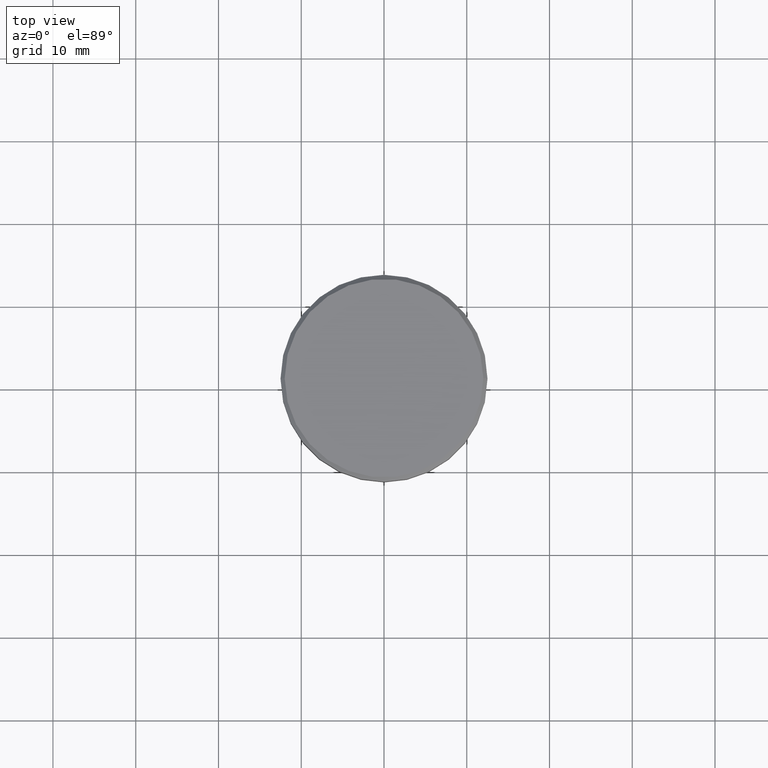
[diagram: clean part render]
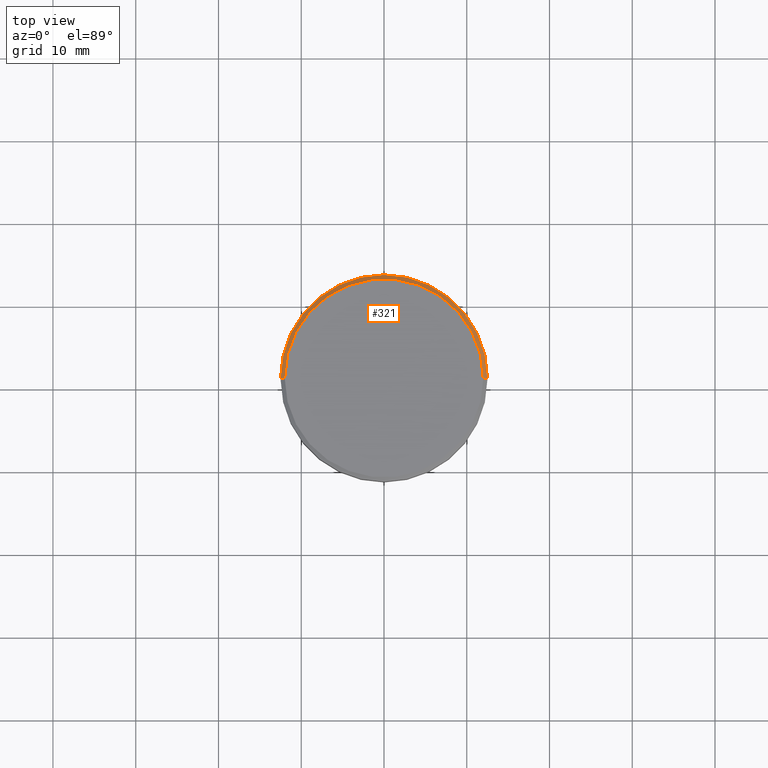
[diagram: same view with one face highlighted and labeled with its STEP entity id]
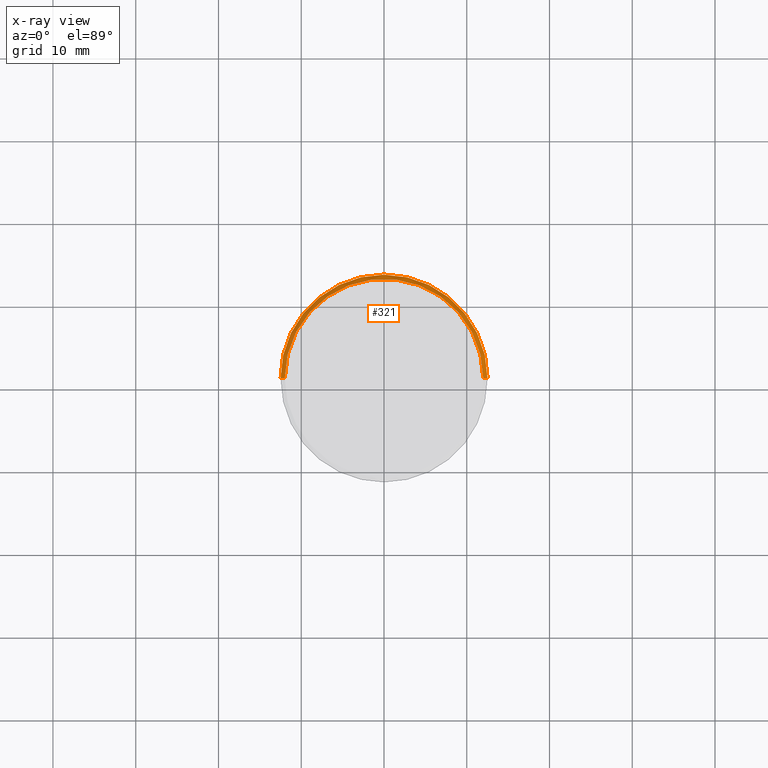
[diagram: x-ray of the same camera — body ghosted, the highlighted face saturated]
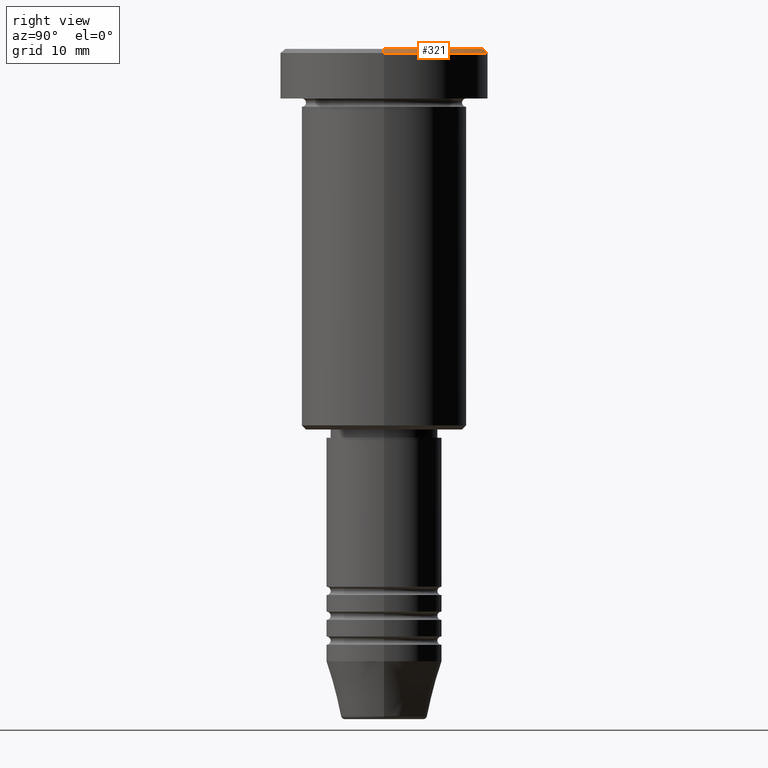
[diagram: same view with one face highlighted and labeled with its STEP entity id]
A machine part, top view. The second image highlights one B-rep face of the part: STEP entity #321.
The next image is the same camera in x-ray: the body ghosted, the highlighted face saturated — about 0% of this face is hidden behind the body in this view.
A second angle (right view) of the same face is appended — the face is thin or edge-on in the first view.
In plain terms, the highlighted conical surface has half-angle 45 deg.
Its self-contained STEP definition (entity closure, byte-faithful):
#30 = AXIS2_PLACEMENT_3D ( 'NONE', #1177, #819, #1183 ) ;
#128 = CARTESIAN_POINT ( 'NONE',  ( 0.000000000000000000, 0.000000000000000000, 0.000000000000000000 ) ) ;
#141 = CONICAL_SURFACE ( 'NONE', #500, 11.99999999999999645, 0.7853981633974466137 ) ;
#147 = VERTEX_POINT ( 'NONE', #384 ) ;
#164 = CARTESIAN_POINT ( 'NONE',  ( -11.99999999999999645, 0.000000000000000000, 0.000000000000000000 ) ) ;
#226 = VERTEX_POINT ( 'NONE', #1109 ) ;
#253 = CARTESIAN_POINT ( 'NONE',  ( -12.50000000000000000, 1.530808498934191521E-15, -0.5000000000000056621 ) ) ;
#285 = DIRECTION ( 'NONE',  ( 0.7071067811865463515, 8.659560562354919300E-17, -0.7071067811865487940 ) ) ;
#309 = CARTESIAN_POINT ( 'NONE',  ( 0.000000000000000000, 0.000000000000000000, -0.5000000000000056621 ) ) ;
#310 = DIRECTION ( 'NONE',  ( 0.000000000000000000, 0.000000000000000000, -1.000000000000000000 ) ) ;
#321 = ADVANCED_FACE ( 'NONE', ( #678 ), #141, .T. ) ;
#354 = CARTESIAN_POINT ( 'NONE',  ( 11.99999999999999645, 1.500192328955507537E-15, 0.000000000000000000 ) ) ;
#384 = CARTESIAN_POINT ( 'NONE',  ( -11.99999999999999645, 0.000000000000000000, 0.000000000000000000 ) ) ;
#408 = DIRECTION ( 'NONE',  ( -1.000000000000000000, 0.000000000000000000, 0.000000000000000000 ) ) ;
#461 = EDGE_CURVE ( 'NONE', #911, #147, #865, .T. ) ;
#491 = EDGE_LOOP ( 'NONE', ( #661, #566, #1117, #695 ) ) ;
#500 = AXIS2_PLACEMENT_3D ( 'NONE', #128, #310, #408 ) ;
#504 = DIRECTION ( 'NONE',  ( 0.000000000000000000, 0.000000000000000000, -1.000000000000000000 ) ) ;
#530 = LINE ( 'NONE', #1101, #1105 ) ;
#537 = EDGE_CURVE ( 'NONE', #911, #226, #530, .T. ) ;
#539 = DIRECTION ( 'NONE',  ( -0.7071067811865463515, 0.000000000000000000, -0.7071067811865487940 ) ) ;
#566 = ORIENTED_EDGE ( 'NONE', *, *, #537, .T. ) ;
#661 = ORIENTED_EDGE ( 'NONE', *, *, #461, .F. ) ;
#678 = FACE_OUTER_BOUND ( 'NONE', #491, .T. ) ;
#695 = ORIENTED_EDGE ( 'NONE', *, *, #952, .F. ) ;
#756 = EDGE_CURVE ( 'NONE', #897, #226, #902, .T. ) ;
#775 = DIRECTION ( 'NONE',  ( 1.000000000000000000, 0.000000000000000000, 0.000000000000000000 ) ) ;
#819 = DIRECTION ( 'NONE',  ( -0.000000000000000000, -0.000000000000000000, 1.000000000000000000 ) ) ;
#823 = VECTOR ( 'NONE', #539, 1000.000000000000000 ) ;
#865 = CIRCLE ( 'NONE', #30, 11.99999999999999645 ) ;
#897 = VERTEX_POINT ( 'NONE', #253 ) ;
#902 = CIRCLE ( 'NONE', #1031, 12.50000000000000000 ) ;
#911 = VERTEX_POINT ( 'NONE', #354 ) ;
#952 = EDGE_CURVE ( 'NONE', #147, #897, #968, .T. ) ;
#968 = LINE ( 'NONE', #164, #823 ) ;
#1031 = AXIS2_PLACEMENT_3D ( 'NONE', #309, #504, #775 ) ;
#1101 = CARTESIAN_POINT ( 'NONE',  ( 11.99999999999999645, 1.469576158976823553E-15, 0.000000000000000000 ) ) ;
#1105 = VECTOR ( 'NONE', #285, 1000.000000000000000 ) ;
#1109 = CARTESIAN_POINT ( 'NONE',  ( 12.50000000000000000, 0.000000000000000000, -0.5000000000000056621 ) ) ;
#1117 = ORIENTED_EDGE ( 'NONE', *, *, #756, .F. ) ;
#1177 = CARTESIAN_POINT ( 'NONE',  ( 0.000000000000000000, 0.000000000000000000, 0.000000000000000000 ) ) ;
#1183 = DIRECTION ( 'NONE',  ( 1.000000000000000000, 0.000000000000000000, 0.000000000000000000 ) ) ;